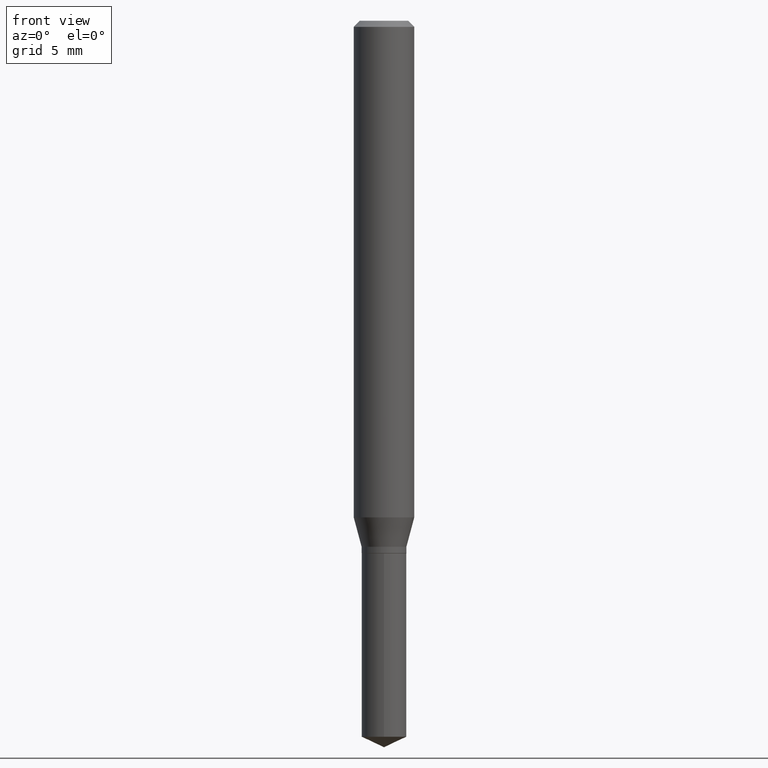
[diagram: clean part render]
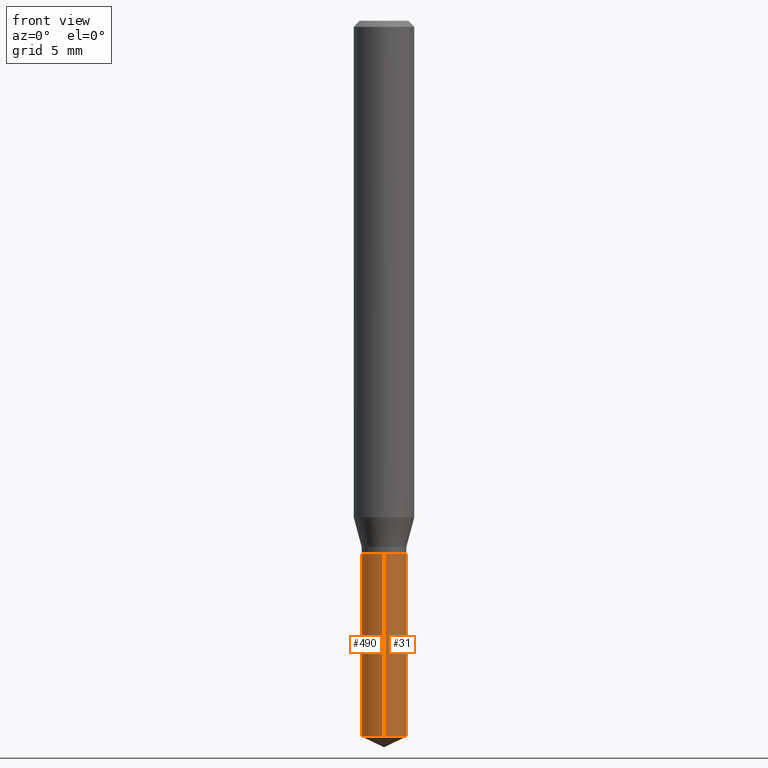
[diagram: same view with one multi-face feature highlighted, each face labeled with its STEP entity id]
A machine part, front view. The highlighted faces form ONE feature: a constant-radius fillet chain: 2 tangent blend faces with common blend radius 1.1747 mm. The faces share edges in the B-rep.
Their STEP definitions:
[1] entity #31 (Cylinder):
#19 = CARTESIAN_POINT ( 'NONE',  ( 3.286260152890731533E-16, 0.04624999999999616224, -1.100000000000000089 ) ) ;
#31 = ADVANCED_FACE ( 'NONE', ( #345 ), #163, .T. ) ;
#34 = CARTESIAN_POINT ( 'NONE',  ( 2.690015686803650369E-29, -3.840629472727460101E-15, -1.100000000000000089 ) ) ;
#44 = AXIS2_PLACEMENT_3D ( 'NONE', #194, #315, #128 ) ;
#53 = AXIS2_PLACEMENT_3D ( 'NONE', #283, #432, #130 ) ;
#77 = LINE ( 'NONE', #336, #110 ) ;
#83 = EDGE_LOOP ( 'NONE', ( #116, #107, #339, #124 ) ) ;
#95 = DIRECTION ( 'NONE',  ( -2.445399690415121810E-29, 3.491580316559632610E-15, 1.000000000000000000 ) ) ;
#107 = ORIENTED_EDGE ( 'NONE', *, *, #412, .T. ) ;
#110 = VECTOR ( 'NONE', #371, 39.37007874015748143 ) ;
#116 = ORIENTED_EDGE ( 'NONE', *, *, #440, .T. ) ;
#124 = ORIENTED_EDGE ( 'NONE', *, *, #307, .F. ) ;
#126 = VERTEX_POINT ( 'NONE', #169 ) ;
#127 = AXIS2_PLACEMENT_3D ( 'NONE', #34, #223, #477 ) ;
#128 = DIRECTION ( 'NONE',  ( -6.982962677686265922E-15, -1.000000000000000000, 2.953349182339743999E-15 ) ) ;
#130 = DIRECTION ( 'NONE',  ( -6.982962677686265922E-15, -1.000000000000000000, 5.906698364679487997E-15 ) ) ;
#163 = CYLINDRICAL_SURFACE ( 'NONE', #44, 0.04624999999999999944 ) ;
#169 = CARTESIAN_POINT ( 'NONE',  ( -3.229620238429629253E-16, -0.04625000000000384359, -1.099999999999999867 ) ) ;
#171 = CARTESIAN_POINT ( 'NONE',  ( 3.286260152890825210E-16, 0.04624999999999616224, -1.100000000000000089 ) ) ;
#193 = VERTEX_POINT ( 'NONE', #253 ) ;
#194 = CARTESIAN_POINT ( 'NONE',  ( 2.690015686803650369E-29, -3.840629472727460101E-15, -1.100000000000000089 ) ) ;
#223 = DIRECTION ( 'NONE',  ( -2.445399690415121530E-29, 3.491580316559632610E-15, 1.000000000000000000 ) ) ;
#253 = CARTESIAN_POINT ( 'NONE',  ( -3.229620238429537055E-16, -0.04625000000000517586, -1.478433270810331157 ) ) ;
#283 = CARTESIAN_POINT ( 'NONE',  ( 3.615436290086016427E-29, -5.161959632220094435E-15, -1.478433270810331379 ) ) ;
#307 = EDGE_CURVE ( 'NONE', #193, #126, #77, .T. ) ;
#315 = DIRECTION ( 'NONE',  ( -2.445399690415121530E-29, 3.491580316559632610E-15, 1.000000000000000000 ) ) ;
#316 = EDGE_CURVE ( 'NONE', #126, #340, #418, .T. ) ;
#336 = CARTESIAN_POINT ( 'NONE',  ( -3.229620238429629253E-16, -0.04625000000000384359, -1.099999999999999867 ) ) ;
#339 = ORIENTED_EDGE ( 'NONE', *, *, #316, .F. ) ;
#340 = VERTEX_POINT ( 'NONE', #171 ) ;
#345 = FACE_OUTER_BOUND ( 'NONE', #83, .T. ) ;
#371 = DIRECTION ( 'NONE',  ( -2.445399690415121810E-29, 3.491580316559632610E-15, 1.000000000000000000 ) ) ;
#386 = VECTOR ( 'NONE', #95, 39.37007874015748143 ) ;
#412 = EDGE_CURVE ( 'NONE', #434, #340, #424, .T. ) ;
#418 = CIRCLE ( 'NONE', #127, 0.04624999999999999944 ) ;
#424 = LINE ( 'NONE', #19, #386 ) ;
#432 = DIRECTION ( 'NONE',  ( -2.445399690415121530E-29, 3.491580316559632610E-15, 1.000000000000000000 ) ) ;
#434 = VERTEX_POINT ( 'NONE', #470 ) ;
#440 = EDGE_CURVE ( 'NONE', #193, #434, #453, .T. ) ;
#453 = CIRCLE ( 'NONE', #53, 0.04624999999999999944 ) ;
#470 = CARTESIAN_POINT ( 'NONE',  ( 3.286260152890825703E-16, 0.04624999999999484385, -1.478433270810331601 ) ) ;
#477 = DIRECTION ( 'NONE',  ( -6.982962677686265922E-15, -1.000000000000000000, 2.953349182339743999E-15 ) ) ;
[2] entity #490 (Cylinder):
#19 = CARTESIAN_POINT ( 'NONE',  ( 3.286260152890731533E-16, 0.04624999999999616224, -1.100000000000000089 ) ) ;
#28 = EDGE_LOOP ( 'NONE', ( #333, #120, #218, #455 ) ) ;
#32 = CIRCLE ( 'NONE', #313, 0.04624999999999999944 ) ;
#39 = AXIS2_PLACEMENT_3D ( 'NONE', #71, #75, #298 ) ;
#71 = CARTESIAN_POINT ( 'NONE',  ( 2.690015686803650369E-29, -3.840629472727460101E-15, -1.100000000000000089 ) ) ;
#75 = DIRECTION ( 'NONE',  ( -2.445399690415121530E-29, 3.491580316559632610E-15, 1.000000000000000000 ) ) ;
#77 = LINE ( 'NONE', #336, #110 ) ;
#85 = EDGE_CURVE ( 'NONE', #340, #126, #343, .T. ) ;
#95 = DIRECTION ( 'NONE',  ( -2.445399690415121810E-29, 3.491580316559632610E-15, 1.000000000000000000 ) ) ;
#103 = CARTESIAN_POINT ( 'NONE',  ( 2.690015686803650369E-29, -3.840629472727460101E-15, -1.100000000000000089 ) ) ;
#110 = VECTOR ( 'NONE', #371, 39.37007874015748143 ) ;
#120 = ORIENTED_EDGE ( 'NONE', *, *, #458, .T. ) ;
#126 = VERTEX_POINT ( 'NONE', #169 ) ;
#169 = CARTESIAN_POINT ( 'NONE',  ( -3.229620238429629253E-16, -0.04625000000000384359, -1.099999999999999867 ) ) ;
#171 = CARTESIAN_POINT ( 'NONE',  ( 3.286260152890825210E-16, 0.04624999999999616224, -1.100000000000000089 ) ) ;
#176 = DIRECTION ( 'NONE',  ( -2.445399690415121530E-29, 3.491580316559632610E-15, 1.000000000000000000 ) ) ;
#193 = VERTEX_POINT ( 'NONE', #253 ) ;
#212 = CARTESIAN_POINT ( 'NONE',  ( 3.615436290086016427E-29, -5.161959632220094435E-15, -1.478433270810331379 ) ) ;
#218 = ORIENTED_EDGE ( 'NONE', *, *, #307, .T. ) ;
#243 = DIRECTION ( 'NONE',  ( -2.445399690415121530E-29, 3.491580316559632610E-15, 1.000000000000000000 ) ) ;
#253 = CARTESIAN_POINT ( 'NONE',  ( -3.229620238429537055E-16, -0.04625000000000517586, -1.478433270810331157 ) ) ;
#293 = FACE_OUTER_BOUND ( 'NONE', #28, .T. ) ;
#298 = DIRECTION ( 'NONE',  ( -6.982962677686265922E-15, -1.000000000000000000, 2.953349182339743999E-15 ) ) ;
#307 = EDGE_CURVE ( 'NONE', #193, #126, #77, .T. ) ;
#313 = AXIS2_PLACEMENT_3D ( 'NONE', #212, #176, #326 ) ;
#326 = DIRECTION ( 'NONE',  ( -6.982962677686265922E-15, -1.000000000000000000, 5.906698364679487997E-15 ) ) ;
#330 = CYLINDRICAL_SURFACE ( 'NONE', #39, 0.04624999999999999944 ) ;
#333 = ORIENTED_EDGE ( 'NONE', *, *, #412, .F. ) ;
#336 = CARTESIAN_POINT ( 'NONE',  ( -3.229620238429629253E-16, -0.04625000000000384359, -1.099999999999999867 ) ) ;
#340 = VERTEX_POINT ( 'NONE', #171 ) ;
#343 = CIRCLE ( 'NONE', #413, 0.04624999999999999944 ) ;
#371 = DIRECTION ( 'NONE',  ( -2.445399690415121810E-29, 3.491580316559632610E-15, 1.000000000000000000 ) ) ;
#386 = VECTOR ( 'NONE', #95, 39.37007874015748143 ) ;
#412 = EDGE_CURVE ( 'NONE', #434, #340, #424, .T. ) ;
#413 = AXIS2_PLACEMENT_3D ( 'NONE', #103, #243, #467 ) ;
#424 = LINE ( 'NONE', #19, #386 ) ;
#434 = VERTEX_POINT ( 'NONE', #470 ) ;
#455 = ORIENTED_EDGE ( 'NONE', *, *, #85, .F. ) ;
#458 = EDGE_CURVE ( 'NONE', #434, #193, #32, .T. ) ;
#467 = DIRECTION ( 'NONE',  ( -6.982962677686265922E-15, -1.000000000000000000, 2.953349182339743999E-15 ) ) ;
#470 = CARTESIAN_POINT ( 'NONE',  ( 3.286260152890825703E-16, 0.04624999999999484385, -1.478433270810331601 ) ) ;
#490 = ADVANCED_FACE ( 'NONE', ( #293 ), #330, .T. ) ;